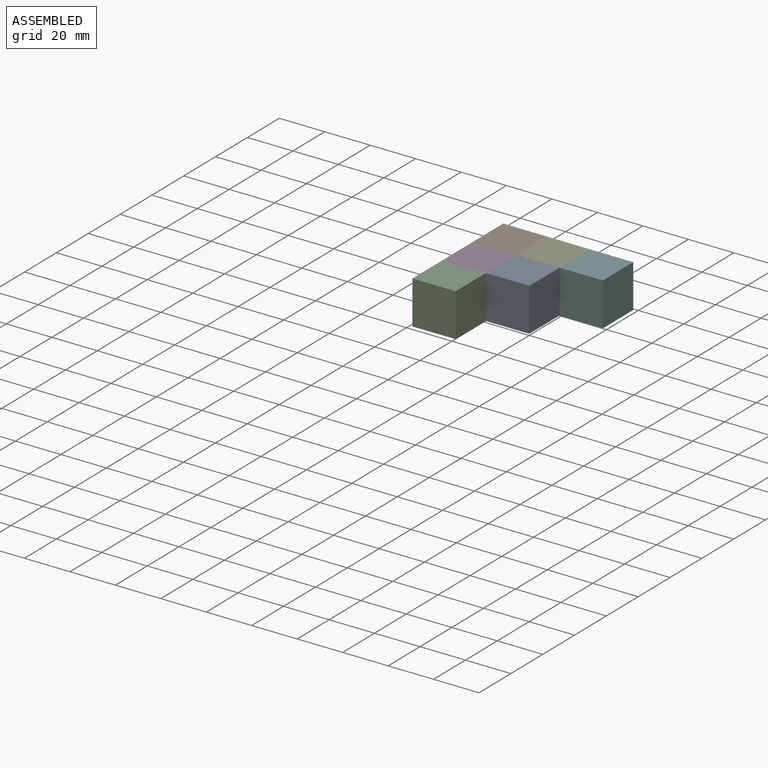
[diagram: assembled view]
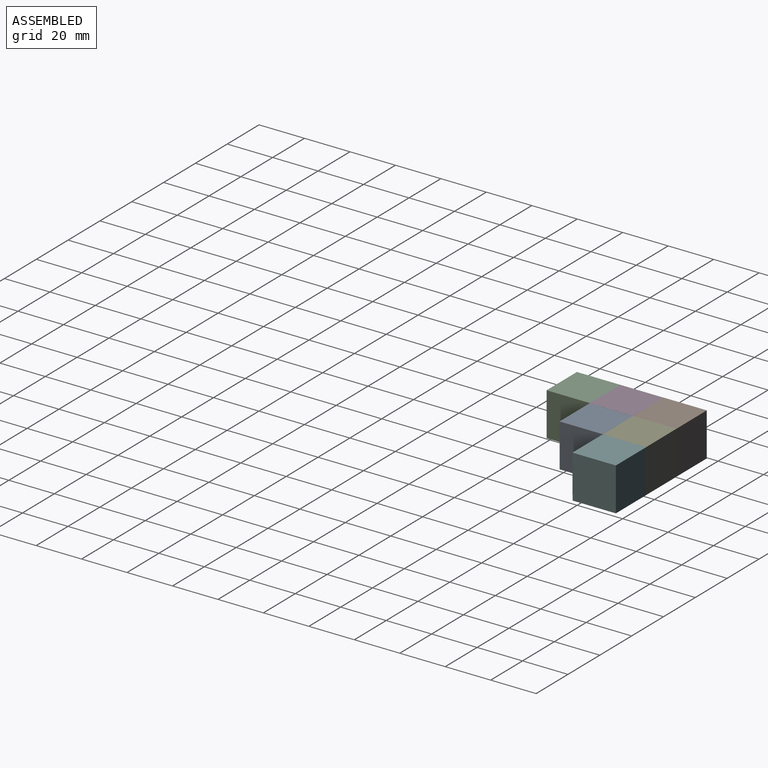
[diagram: assembled view, second angle]
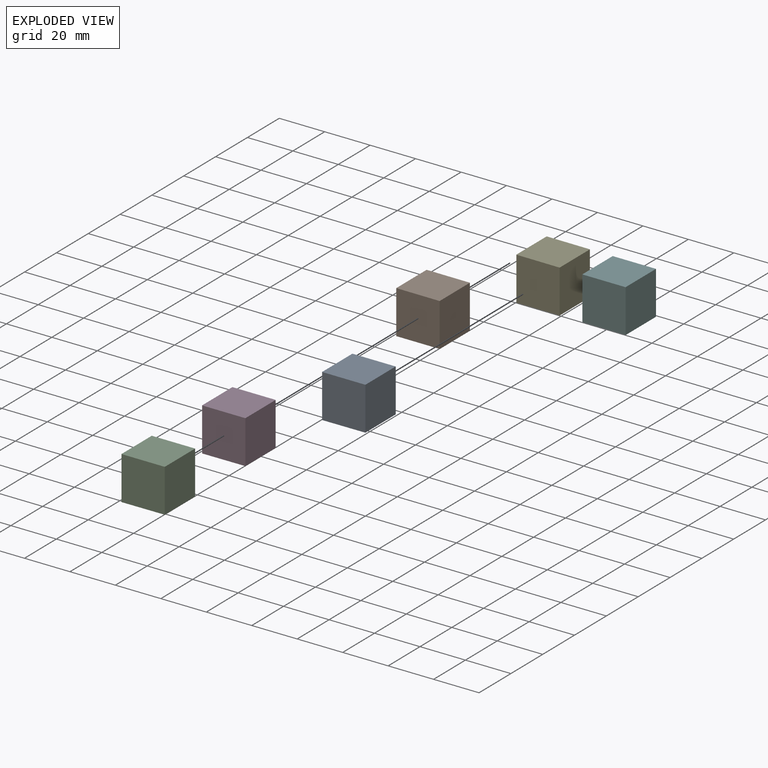
[diagram: exploded view]
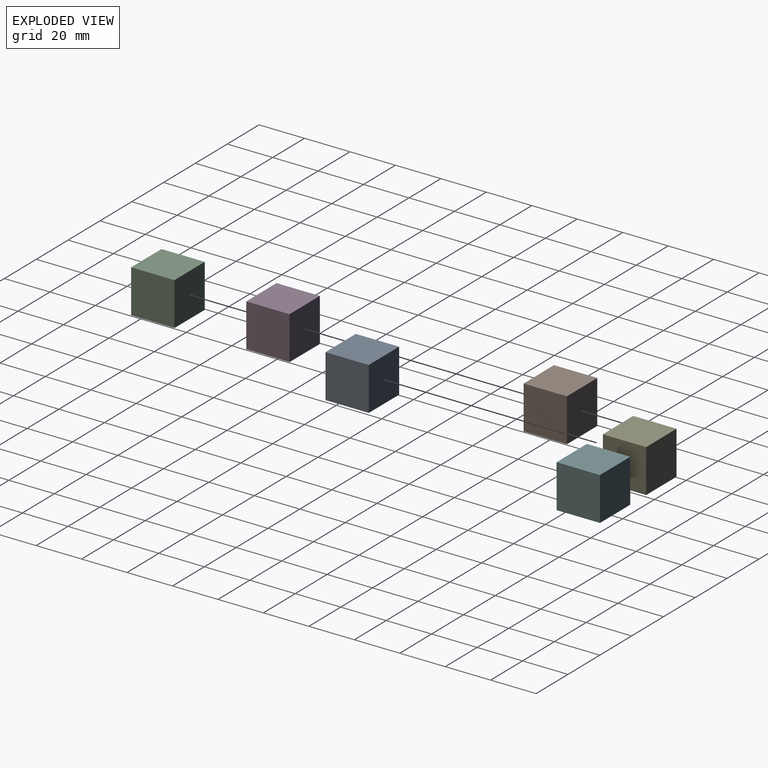
[diagram: exploded view, second angle]
ASSEMBLY  parts=6 mates=5
PART A: 6 faces, bbox 19.1x19.1x19.1 mm
  f0: plane 19.05x19.05mm, normal (0,0,1), area 362.9mm2, adj f1,f3,f4,f5
  f1: plane 19.1x19.05mm, normal (-1,0,0), area 363.9mm2, adj f0,f2,f4,f5
  f2: plane 19.05x19.05mm, normal (0,0,-1), area 362.9mm2, adj f1,f3,f4,f5
  f3: plane 19.05x19.05mm, normal (1,0,0), area 362.9mm2, adj f0,f2,f4,f5
  f4: plane 19.1x19.05mm, normal (0,-1,0), area 363.4mm2, adj f0,f1,f2,f3
  f5: plane 19.1x19.05mm, normal (0,1,0), area 363.4mm2, adj f0,f1,f2,f3
PART B: same geometry as A
PART C: same geometry as A
PART D: same geometry as A
PART E: same geometry as A
PART F: same geometry as A
PLACE A rot(axis=(1,0,0),180deg) t=(-9.03,-41.13,5.36)mm
PLACE B t=(-28.08,-3.03,4.96)mm fixed
PLACE C rot(axis=(1,0,0),180deg) t=(-28.08,-60.18,5.39)mm
PLACE D rot(axis=(1,0,0),180deg) t=(-28.08,-41.13,5.39)mm
PLACE E t=(-9.03,-3.03,4.93)mm
PLACE F rot(axis=(0.58,0.58,-0.58),120deg) t=(19.9,-12.34,5.48)mm
MATE fastened E.f4 <-> A.f4  axis (0,-1,0) through (-8.68,-22.08,5.15)mm
MATE fastened B.f3 <-> E.f1  axis (1,0,0) through (-18.2,-12.55,5.16)mm
MATE fastened B.f4 <-> D.f4  axis (0,-1,0) through (-27.73,-22.08,5.17)mm
MATE fastened D.f5 <-> C.f4  axis (0,-1,0) through (-27.73,-41.13,5.17)mm
MATE fastened E.f3 <-> F.f4  axis (1,0,0) through (0.85,-12.55,5.13)mm
